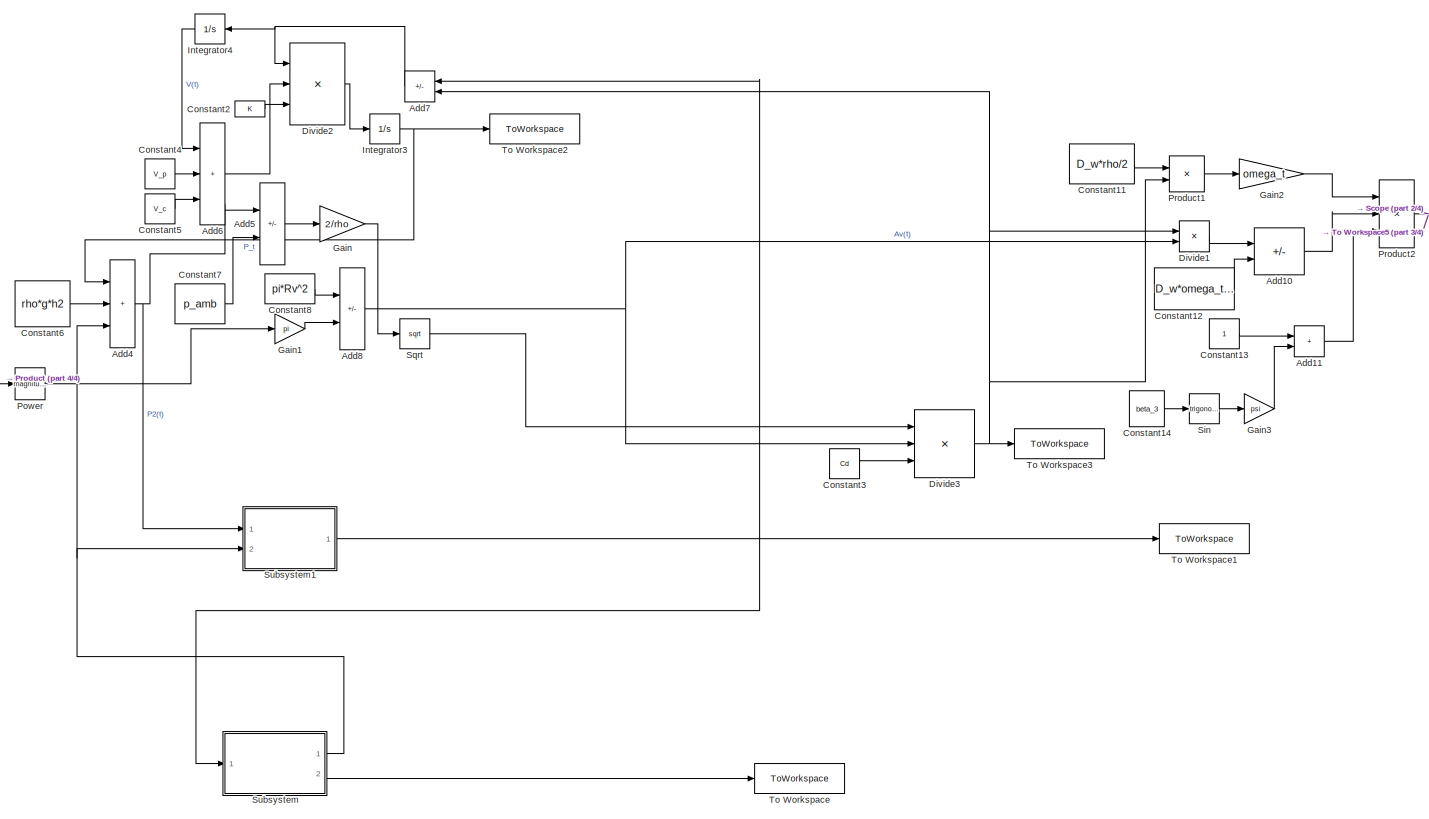
[diagram: root canvas - part 1/4, most of the canvas]
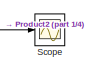
[diagram: root canvas - part 2/4, top right region]
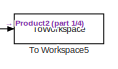
[diagram: root canvas - part 3/4, middle right region]
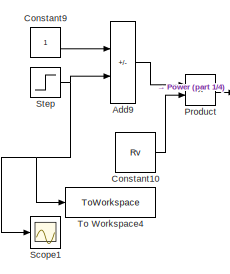
[diagram: root canvas - part 4/4, middle left region]
MODEL slx_ddeceeec769d
KIND model
CONFIG AbsTol = auto
CONFIG EnableMultiTasking = off
CONFIG FixedStep = auto
CONFIG MaxStep = auto
CONFIG MinStep = auto
CONFIG RelTol = 1e-3
CONFIG SampleTimeConstraint = Unconstrained
CONFIG SolverName = VariableStepAuto
CONFIG StartTime = 0
CONFIG StopTime = 100
BLOCK [Sum] Add10
  IconShape = rectangular
  Inputs = +-
  Ports = [2, 1]
BLOCK [Sum] Add11
  IconShape = rectangular
  Ports = [2, 1]
BLOCK [Sum] Add4
  IconShape = rectangular
  Inputs = +++
  Ports = [3, 1]
BLOCK [Sum] Add5
  IconShape = rectangular
  Inputs = +-
  Ports = [2, 1]
BLOCK [Sum] Add6
  IconShape = rectangular
  Inputs = +++
  Ports = [3, 1]
BLOCK [Sum] Add7
  IconShape = rectangular
  Inputs = +-
  Ports = [2, 1]
BLOCK [Sum] Add8
  IconShape = rectangular
  Inputs = +-
  Ports = [2, 1]
BLOCK [Sum] Add9
  IconShape = rectangular
  Inputs = +-
  Ports = [2, 1]
BLOCK [Constant] Constant10
  Value = Rv
BLOCK [Constant] Constant11
  Value = D_w*rho/2
BLOCK [Constant] Constant12
  Value = D_w*omega_t/2
BLOCK [Constant] Constant13
BLOCK [Constant] Constant14
  Value = beta_3
BLOCK [Constant] Constant2
  Value = K
BLOCK [Constant] Constant3
  Value = Cd
BLOCK [Constant] Constant4
  Value = V_p
BLOCK [Constant] Constant5
  Value = V_c
BLOCK [Constant] Constant6
  Value = rho*g*h2
BLOCK [Constant] Constant7
  Value = p_amb
BLOCK [Constant] Constant8
  Value = pi*Rv^2
BLOCK [Constant] Constant9
BLOCK [Product] Divide1
  Inputs = */
  Ports = [2, 1]
BLOCK [Product] Divide2
  Inputs = */*
  Ports = [3, 1]
BLOCK [Product] Divide3
  Inputs = ***
  Ports = [3, 1]
BLOCK [Gain] Gain
  Gain = 2/rho
BLOCK [Gain] Gain1
  Gain = pi
BLOCK [Gain] Gain2
  Gain = omega_t
BLOCK [Gain] Gain3
  Gain = psi
BLOCK [Integrator] Integrator3
  Ports = [1, 1]
BLOCK [Integrator] Integrator4
  Ports = [1, 1]
BLOCK [Math] Power
  Operator = magnitude^2
  Ports = [1, 1]
BLOCK [Product] Product
  Ports = [2, 1]
BLOCK [Product] Product1
  Ports = [2, 1]
BLOCK [Product] Product2
  Inputs = 3
  Ports = [3, 1]
BLOCK [Scope] Scope
  Floating = off
  NumInputPorts = 1
  Ports = [1]
  ScopeSpecificationString = Simulink.scopes.TimeScopeBlockCfg('CurrentConfiguration', extmgr.ConfigurationSet(extmgr.Configuration('Core','General UI',true),extmgr.Configuration('Core','Source UI',true),extmgr.Configuration('Sources','WiredSimulink',true),extmgr.Configuration('Visuals','Time Domain',true,'SerializedDisplays',{struct('MinYLimReal','-278700395.25195','MaxYLimReal','2508303557.26751','YLabelReal','','MinYLimMag...<+1386ch>
BLOCK [Scope] Scope1
  Floating = off
  NumInputPorts = 1
  Ports = [1]
  ScopeSpecificationString = Simulink.scopes.TimeScopeBlockCfg('CurrentConfiguration', extmgr.ConfigurationSet(extmgr.Configuration('Core','General UI',true),extmgr.Configuration('Core','Source UI',true),extmgr.Configuration('Sources','WiredSimulink',true,'DataLoggingVariableName','ScopeData1'),extmgr.Configuration('Visuals','Time Domain',true,'SerializedDisplays',{struct('MinYLimReal','0.4875','MaxYLimReal','0.6125','YLabelR...<+1353ch>
BLOCK [Trigonometry] Sin
  Ports = [1, 1]
BLOCK [Sqrt] Sqrt
BLOCK [Step] Step
  After = 0.6
  Before = x_v
  SampleTime = 0
  Time = 50
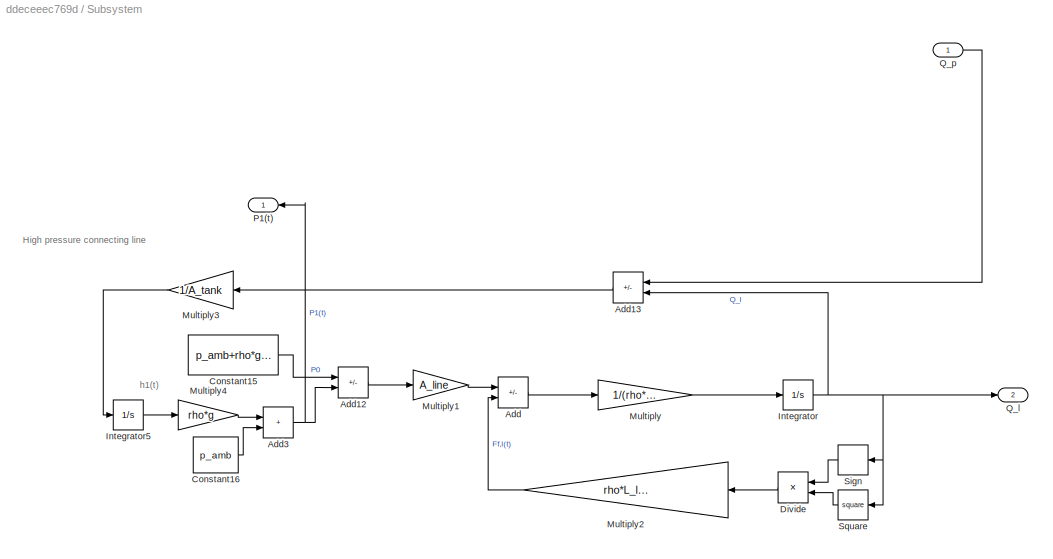
BLOCK [SubSystem] Subsystem
  Ports = [1, 2]
  RequestExecContextInheritance = off
BLOCK [Sum] Subsystem/Add
  IconShape = rectangular
  Inputs = +-
  Ports = [2, 1]
BLOCK [Sum] Subsystem/Add12
  IconShape = rectangular
  Inputs = +-
  Ports = [2, 1]
BLOCK [Sum] Subsystem/Add13
  IconShape = rectangular
  Inputs = -+
  Ports = [2, 1]
BLOCK [Sum] Subsystem/Add3
  IconShape = rectangular
  Ports = [2, 1]
BLOCK [Constant] Subsystem/Constant15
  Value = p_amb+rho*g*h0
BLOCK [Constant] Subsystem/Constant16
  Value = p_amb
BLOCK [Product] Subsystem/Divide
  Inputs = **
  Ports = [2, 1]
BLOCK [Integrator] Subsystem/Integrator
  InitialCondition = 20
  Ports = [1, 1]
BLOCK [Integrator] Subsystem/Integrator5
  InitialCondition = h_tank_0
  Ports = [1, 1]
BLOCK [Gain] Subsystem/Multiply
  Gain = 1/(rho*L_line)
BLOCK [Gain] Subsystem/Multiply1
  Gain = A_line
BLOCK [Gain] Subsystem/Multiply2
  Gain = rho*L_line*lambda/(2*A_line*D_line)
BLOCK [Gain] Subsystem/Multiply3
  Gain = 1/A_tank
BLOCK [Gain] Subsystem/Multiply4
  Gain = rho*g
BLOCK [Outport] Subsystem/P1(t)
BLOCK [Outport] Subsystem/Q_l
  Port = 2
BLOCK [Inport] Subsystem/Q_p
BLOCK [Signum] Subsystem/Sign
BLOCK [Math] Subsystem/Square
  Operator = square
  Ports = [1, 1]
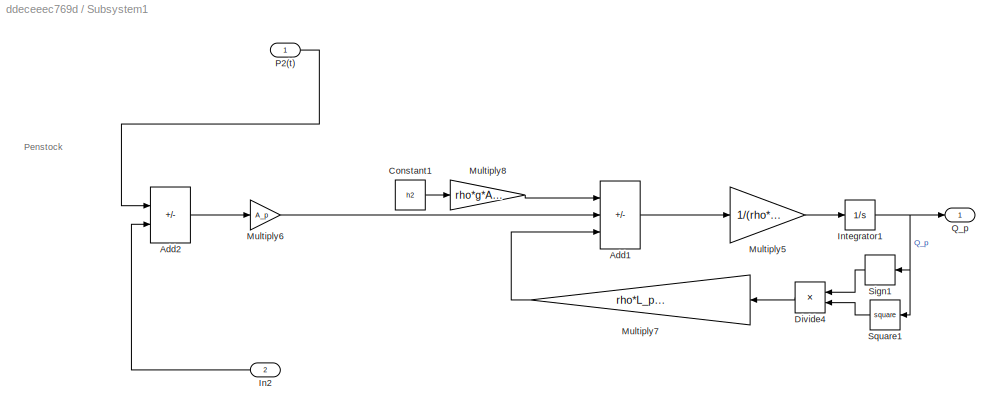
BLOCK [SubSystem] Subsystem1
  Ports = [2, 1]
  RequestExecContextInheritance = off
BLOCK [Sum] Subsystem1/Add1
  IconShape = rectangular
  Inputs = ++-
  Ports = [3, 1]
BLOCK [Sum] Subsystem1/Add2
  IconShape = rectangular
  Inputs = -+
  Ports = [2, 1]
BLOCK [Constant] Subsystem1/Constant1
  Value = h2
BLOCK [Product] Subsystem1/Divide4
  Inputs = **
  Ports = [2, 1]
BLOCK [Inport] Subsystem1/In2
  Port = 2
BLOCK [Integrator] Subsystem1/Integrator1
  InitialCondition = 20
  Ports = [1, 1]
BLOCK [Gain] Subsystem1/Multiply5
  Gain = 1/(rho*L_p)
BLOCK [Gain] Subsystem1/Multiply6
  Gain = A_p
BLOCK [Gain] Subsystem1/Multiply7
  Gain = rho*L_p*lambda_p/(2*A_p*D_p)
BLOCK [Gain] Subsystem1/Multiply8
  Gain = rho*g*A_p
BLOCK [Inport] Subsystem1/P2(t)
BLOCK [Outport] Subsystem1/Q_p
BLOCK [Signum] Subsystem1/Sign1
BLOCK [Math] Subsystem1/Square1
  Operator = square
  Ports = [1, 1]
BLOCK [ToWorkspace] To Workspace
  FixptAsFi = on
  MaxDataPoints = inf
  Ports = [1]
  SampleTime = -1
  VariableName = Q_l
BLOCK [ToWorkspace] To Workspace1
  FixptAsFi = on
  MaxDataPoints = inf
  Ports = [1]
  SampleTime = -1
  VariableName = Q_p
BLOCK [ToWorkspace] To Workspace2
  FixptAsFi = on
  MaxDataPoints = inf
  Ports = [1]
  SampleTime = -1
  VariableName = p_t
BLOCK [ToWorkspace] To Workspace3
  FixptAsFi = on
  MaxDataPoints = inf
  Ports = [1]
  SampleTime = -1
  VariableName = Q_v
BLOCK [ToWorkspace] To Workspace4
  FixptAsFi = on
  MaxDataPoints = inf
  Ports = [1]
  SampleTime = -1
  SaveFormat = Timeseries
  VariableName = xt
BLOCK [ToWorkspace] To Workspace5
  FixptAsFi = on
  MaxDataPoints = inf
  Ports = [1]
  SampleTime = -1
  SaveFormat = Timeseries
  VariableName = w_dot
ANNOTATION Subsystem: High pressure connecting line
ANNOTATION Subsystem: h1(t)
ANNOTATION Subsystem1: Penstock
LINE Add10:1 -> Product2:2
LINE Add11:1 -> Product2:3
NET Add4:1 -> Add5:1, Subsystem1:1
LINE Add5:1 -> Gain:1
LINE Add6:1 -> Divide2:2
NET Add7:1 -> Divide2:1, Integrator4:1
NET Add8:1 -> Divide1:2, Divide3:2
LINE Add9:1 -> Product:1
LINE Constant10:1 -> Product:2
LINE Constant11:1 -> Product1:1
LINE Constant12:1 -> Add10:2
LINE Constant13:1 -> Add11:1
LINE Constant14:1 -> Sin:1
LINE Constant2:1 -> Divide2:3
LINE Constant3:1 -> Divide3:3
LINE Constant4:1 -> Add6:2
LINE Constant5:1 -> Add6:3
LINE Constant6:1 -> Add4:2
LINE Constant7:1 -> Add5:2
LINE Constant8:1 -> Add8:1
LINE Constant9:1 -> Add9:1
LINE Divide1:1 -> Add10:1
LINE Divide2:1 -> Integrator3:1
NET Divide3:1 -> Add7:2, Divide1:1, Product1:2, To Workspace3:1
LINE Gain1:1 -> Add8:2
LINE Gain2:1 -> Product2:1
LINE Gain3:1 -> Add11:2
LINE Gain:1 -> Sqrt:1
NET Integrator3:1 -> Add4:1, To Workspace2:1
LINE Integrator4:1 -> Add6:1
LINE Power:1 -> Gain1:1
LINE Product1:1 -> Gain2:1
NET Product2:1 -> Scope:1, To Workspace5:1
LINE Product:1 -> Power:1
LINE Sin:1 -> Gain3:1
LINE Sqrt:1 -> Divide3:1
NET Step:1 -> Add9:2, Scope1:1, To Workspace4:1
LINE Subsystem/Add12:1 -> Subsystem/Multiply1:1
LINE Subsystem/Add13:1 -> Subsystem/Multiply3:1
NET Subsystem/Add3:1 -> Subsystem/Add12:2, Subsystem/P1(t):1
LINE Subsystem/Add:1 -> Subsystem/Multiply:1
LINE Subsystem/Constant15:1 -> Subsystem/Add12:1
LINE Subsystem/Constant16:1 -> Subsystem/Add3:2
LINE Subsystem/Divide:1 -> Subsystem/Multiply2:1
LINE Subsystem/Integrator5:1 -> Subsystem/Multiply4:1
NET Subsystem/Integrator:1 -> Subsystem/Add13:2, Subsystem/Q_l:1, Subsystem/Sign:1, Subsystem/Square:1
LINE Subsystem/Multiply1:1 -> Subsystem/Add:1
LINE Subsystem/Multiply2:1 -> Subsystem/Add:2
LINE Subsystem/Multiply3:1 -> Subsystem/Integrator5:1
LINE Subsystem/Multiply4:1 -> Subsystem/Add3:1
LINE Subsystem/Multiply:1 -> Subsystem/Integrator:1
LINE Subsystem/Q_p:1 -> Subsystem/Add13:1
LINE Subsystem/Sign:1 -> Subsystem/Divide:1
LINE Subsystem/Square:1 -> Subsystem/Divide:2
LINE Subsystem1/Add1:1 -> Subsystem1/Multiply5:1
LINE Subsystem1/Add2:1 -> Subsystem1/Multiply6:1
LINE Subsystem1/Constant1:1 -> Subsystem1/Multiply8:1
LINE Subsystem1/Divide4:1 -> Subsystem1/Multiply7:1
LINE Subsystem1/In2:1 -> Subsystem1/Add2:2
NET Subsystem1/Integrator1:1 -> Subsystem1/Q_p:1, Subsystem1/Sign1:1, Subsystem1/Square1:1
LINE Subsystem1/Multiply5:1 -> Subsystem1/Integrator1:1
LINE Subsystem1/Multiply6:1 -> Subsystem1/Add1:2
LINE Subsystem1/Multiply7:1 -> Subsystem1/Add1:3
LINE Subsystem1/Multiply8:1 -> Subsystem1/Add1:1
LINE Subsystem1/P2(t):1 -> Subsystem1/Add2:1
LINE Subsystem1/Sign1:1 -> Subsystem1/Divide4:1
LINE Subsystem1/Square1:1 -> Subsystem1/Divide4:2
NET Subsystem1:1 -> Add7:1, Subsystem:1, To Workspace1:1
NET Subsystem:1 -> Add4:3, Subsystem1:2
LINE Subsystem:2 -> To Workspace:1
note: NET lines group one-source signal fan-out (src -> all destinations, sorted); 1:1 wires keep LINE
